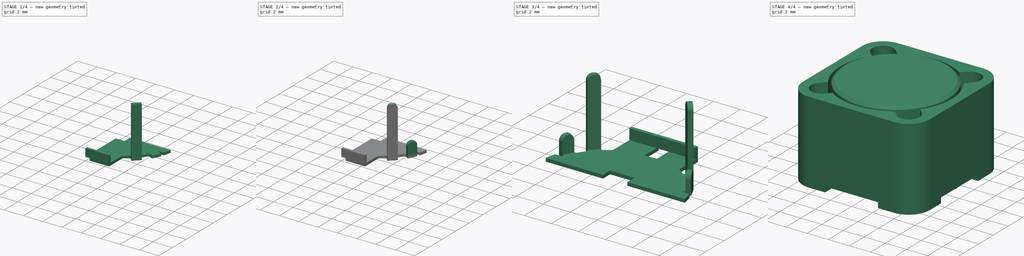
[diagram: build sequence overview — one tinted view per stage of 4, left to right]
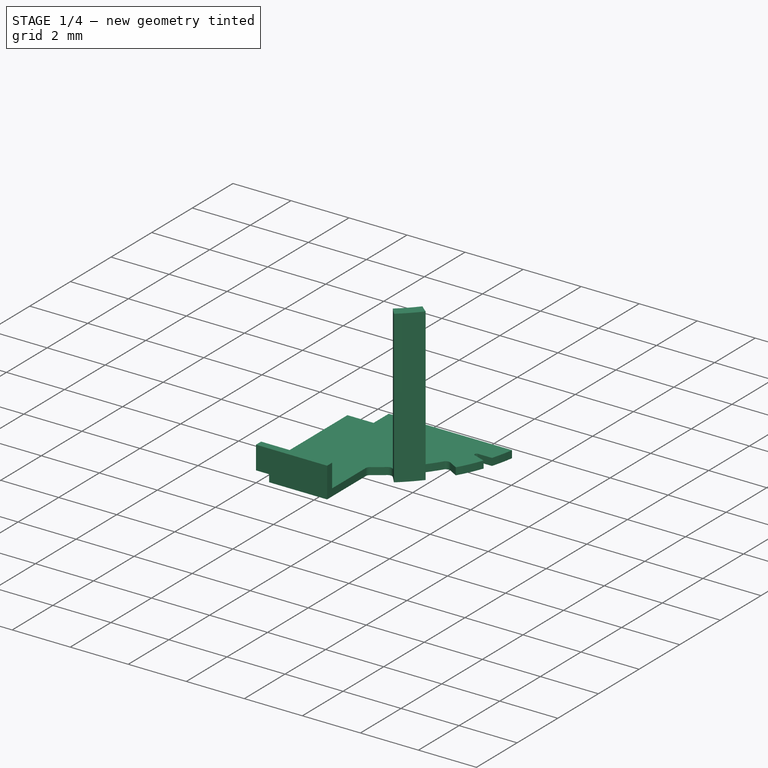
[diagram: stage 1 of 4 — iso view after this stage's code; geometry added in this stage tinted green]
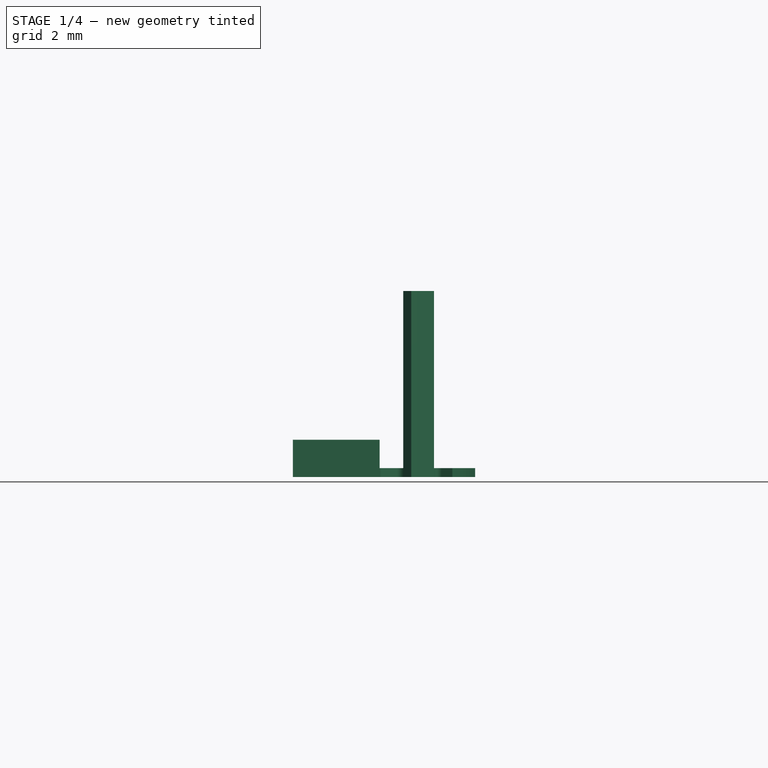
[diagram: stage 1 of 4 — front view after this stage's code; geometry added in this stage tinted green]
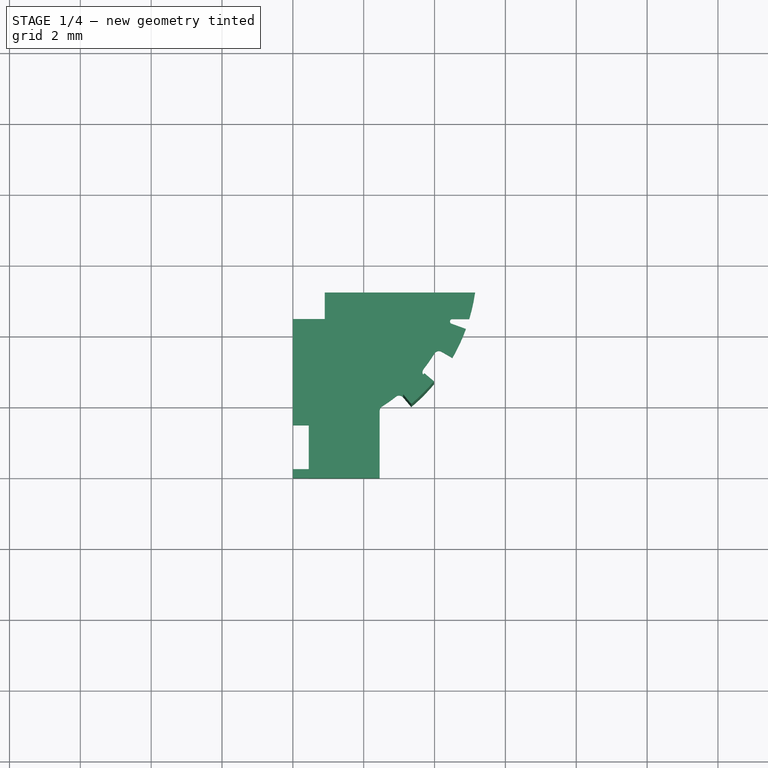
[diagram: stage 1 of 4 — top view after this stage's code; geometry added in this stage tinted green]
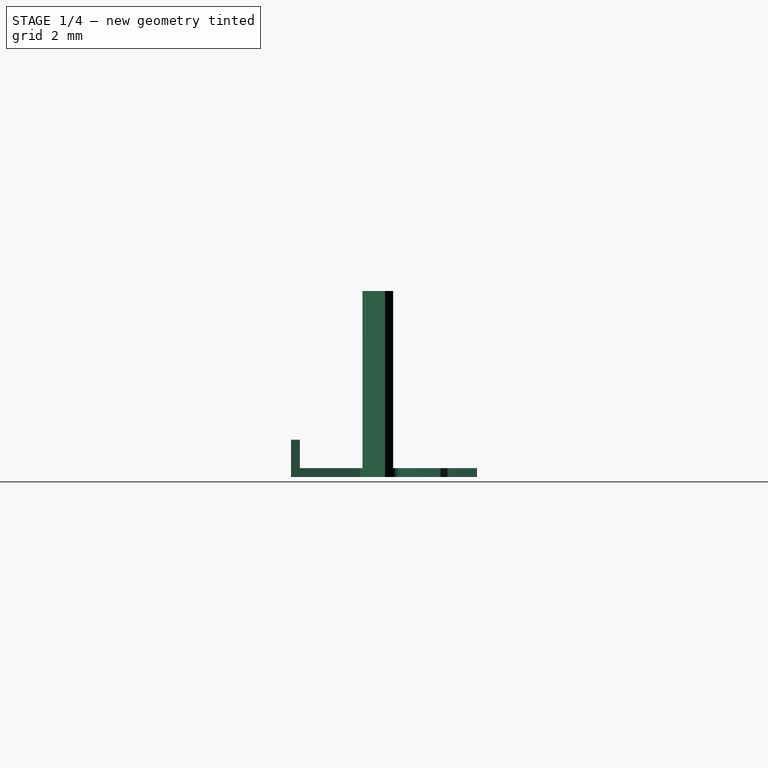
[diagram: stage 1 of 4 — right view after this stage's code; geometry added in this stage tinted green]
FCSTD DOCUMENT  (FreeCAD 0.18.1R)
Label: inductor_02
License: All rights reserved
LicenseURL: http://en.wikipedia.org/wiki/All_rights_reserved
objects: Sketcher::SketchObject×7, PartDesign::Pad×5, PartDesign::Body×3, PartDesign::Fillet×3, Part::Mirroring×3, PartDesign::Pocket×1, PartDesign::Revolution×1, PartDesign::Chamfer×1
note: 31 computed .brp shape members not serialized (recipe doc carries the construction recipe); baked Part::Feature solids carry a one-line shape summary decoded from their .brp

FEATURE [PartDesign::Body] Body001
  Group = -> [Sketch002,Revolution,Chamfer]
  Origin = -> Origin001
  Tip = -> Chamfer
FEATURE [Sketcher::SketchObject] Sketch003
  MapMode = 5
  Support = -> [XY_Plane002]
  sketch-geometry (25):
    g0: LineSegment StartX=0 StartY=-1.5 StartZ=0 EndX=0.9 EndY=-1.5 EndZ=0
    g1: LineSegment StartX=0.9 StartY=-1.5 StartZ=0 EndX=0.9 EndY=-0.75 EndZ=0
    g2: LineSegment StartX=0 StartY=-1.5 StartZ=0 EndX=0 EndY=-4.5 EndZ=0
    g3: LineSegment StartX=0 StartY=-4.5 StartZ=0 EndX=0.45 EndY=-4.5 EndZ=0
    g4: LineSegment StartX=0.45 StartY=-4.5 StartZ=0 EndX=0.45 EndY=-6 EndZ=0
    g5: LineSegment StartX=0.45 StartY=-6 StartZ=0 EndX=2.45 EndY=-6 EndZ=0
    g6: LineSegment StartX=2.45 StartY=-6 StartZ=0 EndX=2.45 EndY=-4.5 EndZ=0
    g7: ArcOfCircle CenterX=0 CenterY=0 CenterZ=0 NormalX=0 NormalY=0 NormalZ=1 AngleXU=0 Radius=5.2 StartAngle=5.41052 EndAngle=5.58505
    g8: LineSegment StartX=4.97896 StartY=-1.5 StartZ=0 EndX=4.50222 EndY=-1.5 EndZ=0
    g9: ArcOfCircle CenterX=4.50222 CenterY=-1.56718 CenterZ=0 NormalX=0 NormalY=0 NormalZ=1 AngleXU=0 Radius=0.0671807 StartAngle=1.5708 EndAngle=4.36332
    g10: LineSegment StartX=4.47924 StartY=-1.63031 StartZ=0 EndX=4.8864 EndY=-1.7785 EndZ=0
    g11: LineSegment StartX=4.50333 StartY=-2.6 StartZ=0 EndX=4.07032 EndY=-2.35 EndZ=0
    g12: LineSegment StartX=3.60041 StartY=-3.0211 StartZ=0 EndX=3.98343 EndY=-3.3425 EndZ=0
    g13: LineSegment StartX=3.3425 StartY=-3.98343 StartZ=0 EndX=3.0211 EndY=-3.60041 EndZ=0
    g14: LineSegment StartX=2.45 StartY=-4.01092 StartZ=0 EndX=2.45 EndY=-4.5 EndZ=0
    g15: ArcOfCircle CenterX=0 CenterY=0 CenterZ=0 NormalX=0 NormalY=0 NormalZ=1 AngleXU=0 Radius=4.7 StartAngle=5.26074 EndAngle=5.41052
    g16: LineSegment [constr] StartX=0 StartY=0 StartZ=0 EndX=4.07032 EndY=-2.35 EndZ=0
    g17: LineSegment [constr] StartX=0 StartY=0 StartZ=0 EndX=3.60041 EndY=-3.0211 EndZ=0
    g18: ArcOfCircle CenterX=0 CenterY=0 CenterZ=0 NormalX=0 NormalY=0 NormalZ=1 AngleXU=0 Radius=5.2 StartAngle=5.75959 EndAngle=5.93412
    g19: ArcOfCircle CenterX=0 CenterY=0 CenterZ=0 NormalX=0 NormalY=0 NormalZ=1 AngleXU=0 Radius=5.2 StartAngle=5.99057 EndAngle=6.13845
    g20: ArcOfCircle CenterX=0 CenterY=0 CenterZ=0 NormalX=0 NormalY=0 NormalZ=1 AngleXU=0 Radius=4.7 StartAngle=5.58505 EndAngle=5.75959
    g21: ArcOfCircle [constr] CenterX=0 CenterY=0 CenterZ=0 NormalX=0 NormalY=0 NormalZ=1 AngleXU=0 Radius=4.7 StartAngle=5.41052 EndAngle=6.28319
    g22: LineSegment [constr] StartX=0 StartY=0 StartZ=0 EndX=4.8864 EndY=-1.7785 EndZ=0
    g23: LineSegment StartX=5.14563 StartY=-0.75 StartZ=0 EndX=0.9 EndY=-0.75 EndZ=0
    g24: LineSegment [constr] StartX=0 StartY=0 StartZ=0 EndX=3.0211 EndY=-3.60041 EndZ=0
  constraints (75):
    c: Coincident(g0,g1)
    c: Vertical(g1)
    c: Horizontal(g0)
    c: Vertical(g2)
    c: Coincident(g2,g3)
    c: Horizontal(g3)
    c: Coincident(g3,g4)
    c: Vertical(g4)
    c: Coincident(g4,g5)
    c: Horizontal(g5)
    c: Coincident(g0,g2)
    c: Vertical(g6)
    c: Coincident(g5,g6)
    c: Coincident(g7,g-1)
    c: Horizontal(g8)
    c: Tangent(g8,g9) = -1.5708
    c: Tangent(g9,g10) = -1.5708
    c: Vertical(g14)
    c: Coincident(g14,g6)
    c: DistanceX(g0,g0) = 0.9
    c: PointOnObject(g0,g-2)
    c: DistanceY(g4,g4) = 1.5
    c: DistanceY(g4,g-1) = 6
    c: DistanceX(g3,g3) = 0.45
    c: DistanceX(g-1,g5) = 2.45
    c: Radius(g7) = 5.2
    c: Radius(g15) = 4.7
    c: Coincident(g15,g-1)
    c: DistanceY(g8,g-1) = 1.5
    c: PointOnObject(g11,g15)
    c: Coincident(g15,g14)
    c: PointOnObject(g8,g7)
    c: PointOnObject(g10,g7)
    c: Coincident(g16,g-1)
    c: Coincident(g17,g-1)
    c: Angle(g16) = -0.523599
    c: Coincident(g16,g11)
    c: Parallel(g11,g16)
    c: Coincident(g7,g13)
    c: Equal(g7,g18)
    c: Coincident(g7,g12)
    c: Coincident(g18,g11)
    c: Coincident(g7,g18)
    c: Equal(g18,g19)
    c: PointOnObject(g18,g10)
    c: PointOnObject(g19,g8)
    c: Coincident(g18,g19)
    c: Equal(g15,g20)
    c: Coincident(g15,g13)
    c: Coincident(g20,g12)
    c: Coincident(g15,g20)
    c: PointOnObject(g20,g11)
    c: Coincident(g21,g-1)
    c: Coincident(g21,g13)
    c: Angle(g12,g-1) = 0.698132
    c: Coincident(g12,g17)
    c: Equal(g4,g6)
    c: Coincident(g22,g-1)
    c: Angle(g22) = -0.349066
    c: PointOnObject(g22,g18)
    c: PointOnObject(g10,g22)
    c: Horizontal(g23)
    c: Coincident(g19,g23)
    c: Coincident(g1,g23)
    c: DistanceY(g0,g-1) = 1.5
    c: DistanceY(g1,g-1) = 0.75
    c: Parallel(g10,g22)
    c: Tangent(g9,g21)
    c: Angle(g17,g-1) = 0.698132
    c: Coincident(g24,g-1)
    c: PointOnObject(g24,g15)
    c: Angle(g24,g-1) = 0.872665
    c: PointOnObject(g24,g13)
    c: Angle(g13,g-1) = 0.872665
    c: Angle(g21) = 0.872665
FEATURE [PartDesign::Pad] Pad001
  Length = 0.25
  Length2 = 100
  Profile = -> Sketch003
  Type = 0
FEATURE [PartDesign::Fillet] Fillet
  Base = -> Pad001 [Edge1,Edge56,Edge47,Edge44]
  BaseFeature = -> Pad001
  Radius = 0.15
FEATURE [Sketcher::SketchObject] Sketch004
  ExternalGeometry = -> [Fillet]
  MapMode = 5
  Placement = pos=(0,0,0.25) rot=(0,0,1;0rad)
  Support = -> [Fillet]
  sketch-geometry (4):
    g0: LineSegment StartX=0 StartY=-5.75 StartZ=0 EndX=2.45 EndY=-5.75 EndZ=0
    g1: LineSegment StartX=2.45 StartY=-6 StartZ=0 EndX=0 EndY=-6 EndZ=0
    g2: LineSegment StartX=0 StartY=-6 StartZ=0 EndX=0 EndY=-5.75 EndZ=0
    g3: LineSegment StartX=2.45 StartY=-5.75 StartZ=0 EndX=2.45 EndY=-6 EndZ=0
  constraints (11):
    c: Coincident(g1,g2)
    c: Coincident(g2,g0)
    c: Horizontal(g0)
    c: Horizontal(g1)
    c: Vertical(g2)
    c: DistanceY(g2,g2) = 0.25
    c: DistanceX(g0,g-1) = 0
    c: Coincident(g3,g0)
    c: Coincident(g3,g1)
    c: Vertical(g3)
    c: Coincident(g1,g-4)
FEATURE [PartDesign::Pad] Pad002
  BaseFeature = -> Fillet
  Length = 0.8
  Length2 = 100
  Profile = -> Sketch004
  Type = 0
FEATURE [Sketcher::SketchObject] Sketch005
  ExternalGeometry = -> [Pad002]
  MapMode = 5
  Placement = pos=(0,0,0.25) rot=(0,0,1;0rad)
  Support = -> [Pad002]
  sketch-geometry (4):
    g0: ArcOfCircle CenterX=0 CenterY=0 CenterZ=0 NormalX=0 NormalY=0 NormalZ=1 AngleXU=0 Radius=4.84768 StartAngle=5.41052 EndAngle=5.58505
    g1: ArcOfCircle CenterX=0 CenterY=0 CenterZ=0 NormalX=0 NormalY=0 NormalZ=1 AngleXU=0 Radius=5.2 StartAngle=5.41052 EndAngle=5.58505
    g2: LineSegment StartX=3.71354 StartY=-3.11603 StartZ=0 EndX=3.98343 EndY=-3.3425 EndZ=0
    g3: LineSegment StartX=3.11603 StartY=-3.71354 StartZ=0 EndX=3.3425 EndY=-3.98343 EndZ=0
  constraints (10):
    c: Coincident(g0,g-1)
    c: Coincident(g1,g-1)
    c: Coincident(g1,g2)
    c: Coincident(g1,g-4)
    c: Coincident(g2,g0)
    c: Coincident(g0,g-3)
    c: Parallel(g-4,g2)
    c: Coincident(g3,g0)
    c: Coincident(g3,g1)
    c: Parallel(g3,g-3)
FEATURE [PartDesign::Pad] Pad003
  BaseFeature = -> Pad002
  Length = 5
  Length2 = 100
  Profile = -> Sketch005
  Type = 0
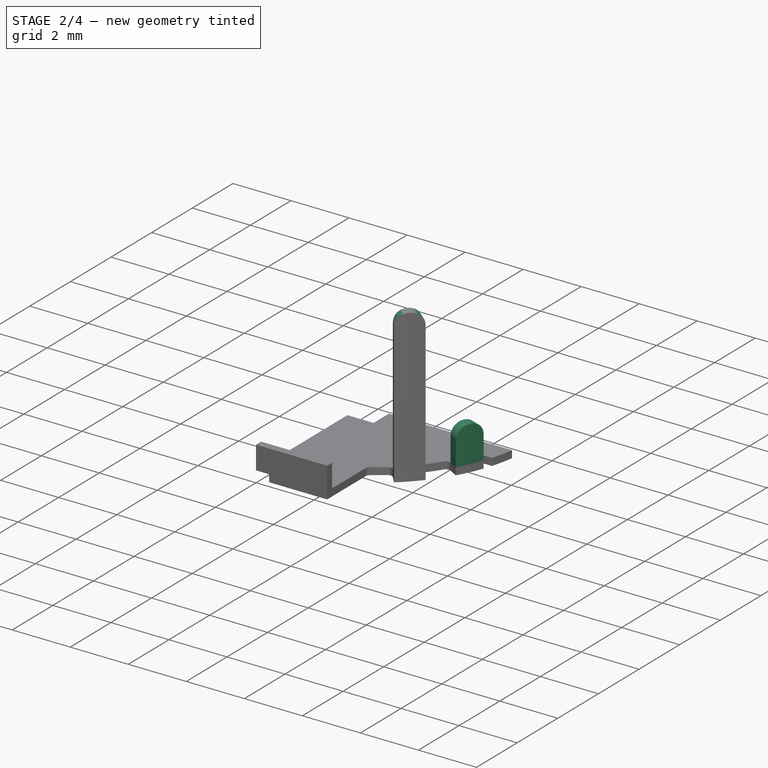
[diagram: stage 2 of 4 — iso view after this stage's code; geometry added in this stage tinted green]
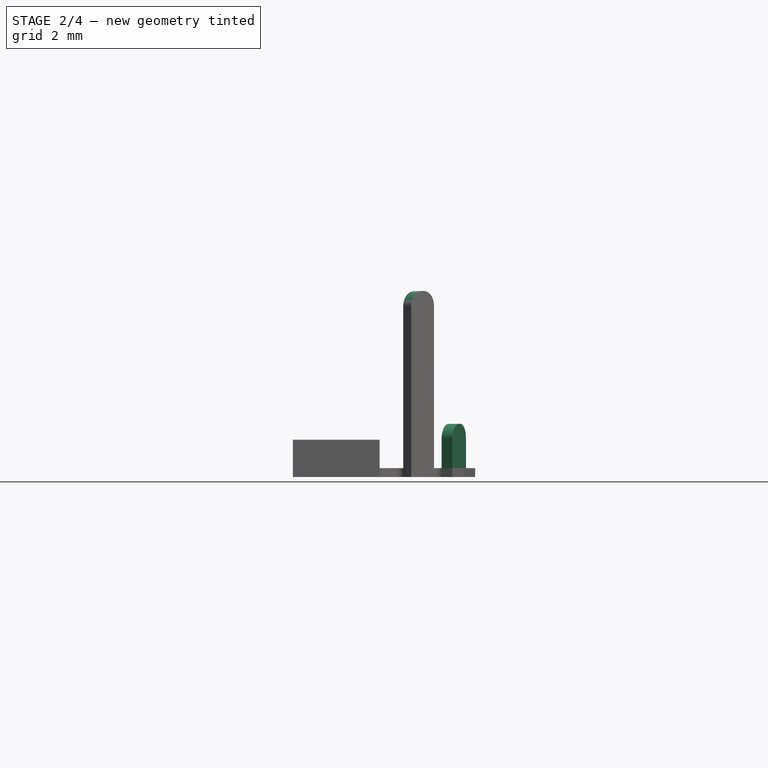
[diagram: stage 2 of 4 — front view after this stage's code; geometry added in this stage tinted green]
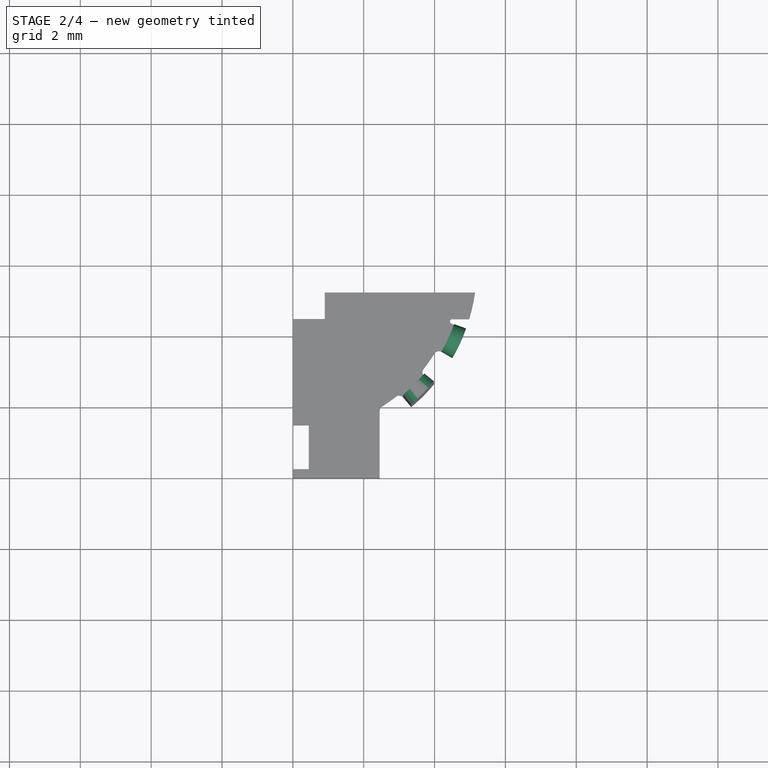
[diagram: stage 2 of 4 — top view after this stage's code; geometry added in this stage tinted green]
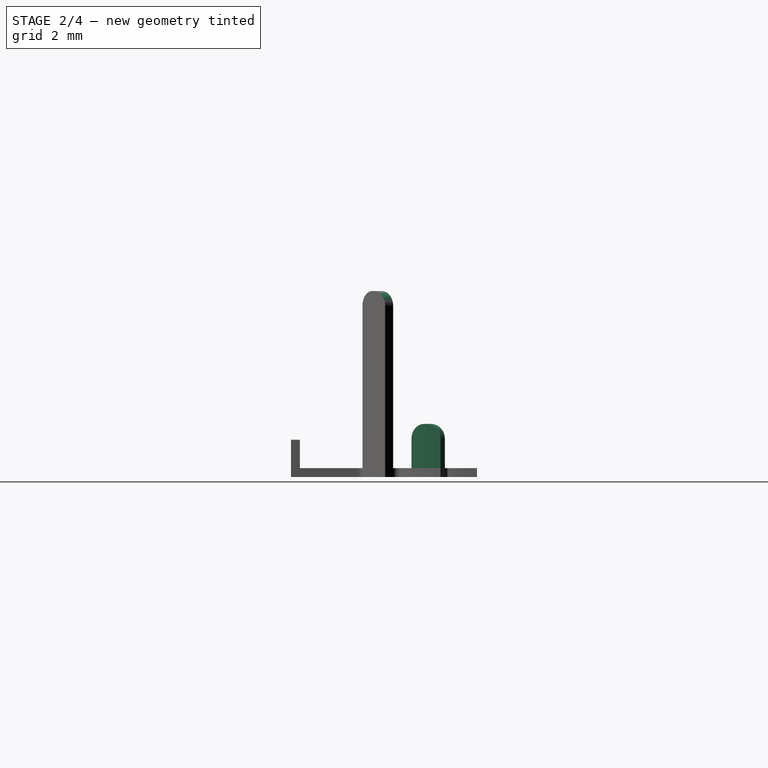
[diagram: stage 2 of 4 — right view after this stage's code; geometry added in this stage tinted green]
FEATURE [Sketcher::SketchObject] Sketch006
  ExternalGeometry = -> [Pad003]
  MapMode = 5
  Placement = pos=(0,0,0.25) rot=(0,0,1;0rad)
  Support = -> [Pad003]
  sketch-geometry (4):
    g0: ArcOfCircle CenterX=0 CenterY=0 CenterZ=0 NormalX=0 NormalY=0 NormalZ=1 AngleXU=0 Radius=4.84768 StartAngle=5.75959 EndAngle=5.93412
    g1: ArcOfCircle CenterX=0 CenterY=0 CenterZ=0 NormalX=0 NormalY=0 NormalZ=1 AngleXU=0 Radius=5.2 StartAngle=5.75959 EndAngle=5.93412
    g2: LineSegment StartX=4.19821 StartY=-2.42384 StartZ=0 EndX=4.50333 EndY=-2.6 EndZ=0
    g3: LineSegment StartX=4.55533 StartY=-1.658 StartZ=0 EndX=4.8864 EndY=-1.7785 EndZ=0
  constraints (10):
    c: Coincident(g0,g-1)
    c: Coincident(g1,g-1)
    c: Coincident(g2,g0)
    c: Coincident(g1,g2)
    c: Coincident(g3,g1)
    c: Coincident(g0,g3)
    c: Coincident(g0,g-4)
    c: Coincident(g-4,g1)
    c: Parallel(g3,g-3)
    c: PointOnObject(g0,g-3)
FEATURE [PartDesign::Pad] Pad004
  BaseFeature = -> Pad003
  Length = 1.25
  Length2 = 100
  Profile = -> Sketch006
  Type = 0
FEATURE [PartDesign::Fillet] Fillet001
  Base = -> Pad004 [Edge96,Edge99]
  BaseFeature = -> Pad004
  Radius = 0.42
FEATURE [PartDesign::Fillet] Fillet002
  Base = -> Fillet001 [Edge99,Edge101]
  BaseFeature = -> Fillet001
  Radius = 0.42
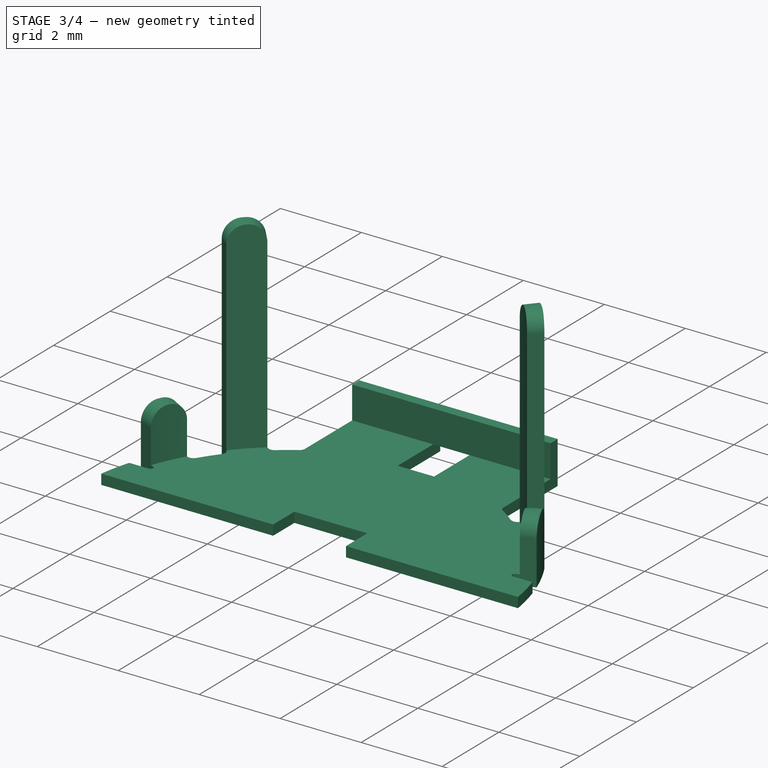
[diagram: stage 3 of 4 — iso view after this stage's code; geometry added in this stage tinted green]
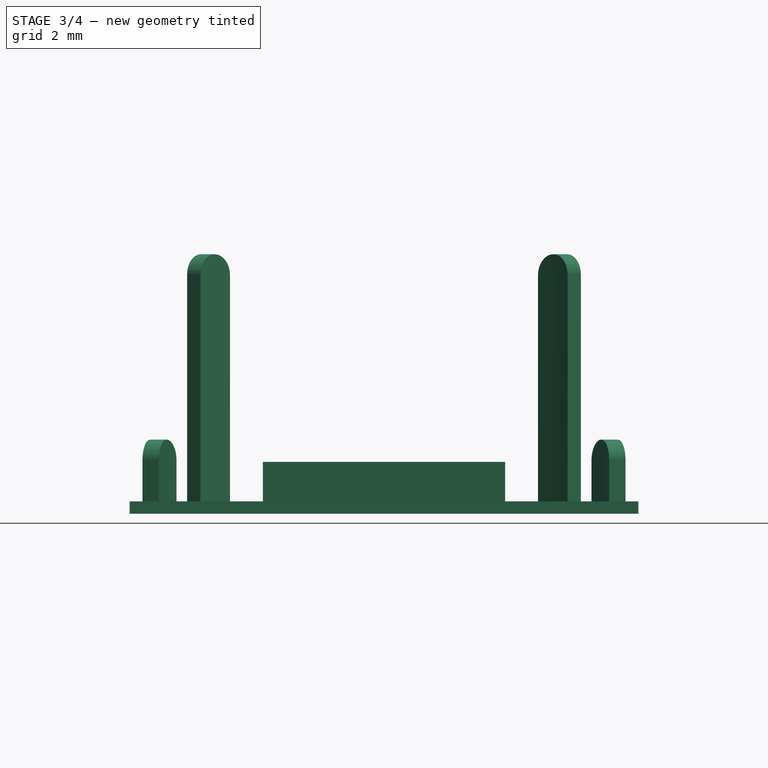
[diagram: stage 3 of 4 — front view after this stage's code; geometry added in this stage tinted green]
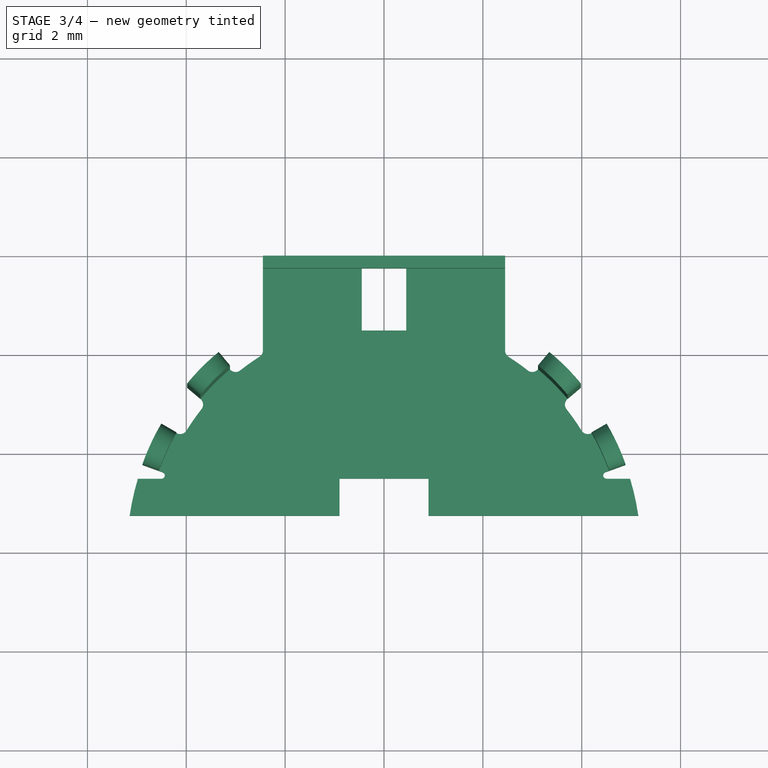
[diagram: stage 3 of 4 — top view after this stage's code; geometry added in this stage tinted green]
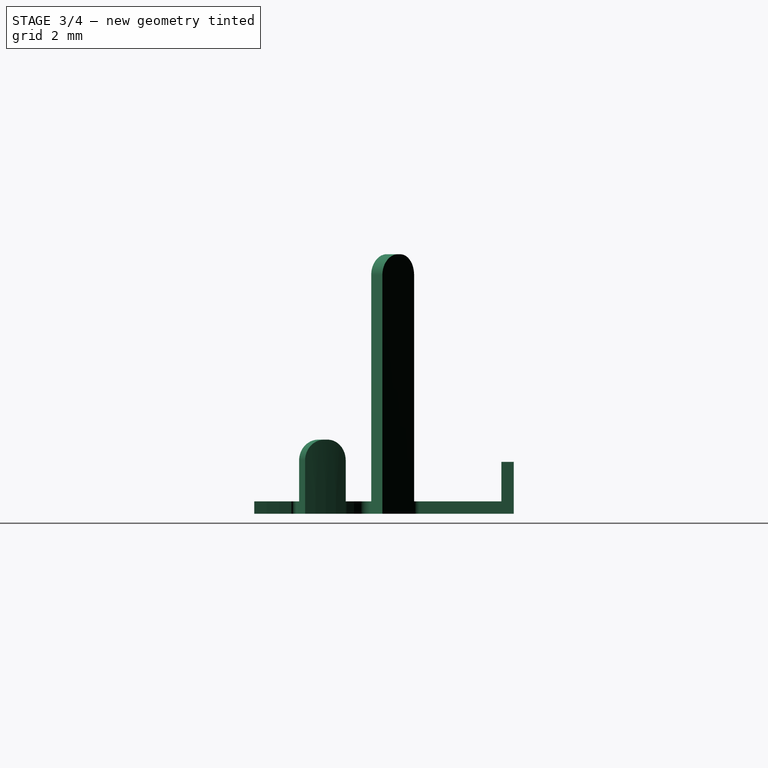
[diagram: stage 3 of 4 — right view after this stage's code; geometry added in this stage tinted green]
FEATURE [PartDesign::Body] Body002
  Group = -> [Sketch003,Pad001,Fillet,Sketch004,Pad002,Sketch005,Pad003,Sketch006,Pad004,Fillet001,Fillet002]
  Origin = -> Origin002
  Placement = pos=(0,0,-0.25) rot=(0,0,1;0rad)
  Tip = -> Fillet002
FEATURE [Part::Mirroring] mirror  label="Mirror of Body002"
  Base = (10,0,0)
  Normal = (0,1,0)
  Source = -> Body002
FEATURE [Part::Mirroring] mirror001  label="Mirror of Body003"
  Base = (0,-10,0)
  Normal = (1,0,0)
  Source = -> Body002
FEATURE [Part::Mirroring] mirror002  label="Mirror of Mirror of Body003"
  Base = (-10,0,0)
  Normal = (0,-1,0)
  Source = -> mirror001
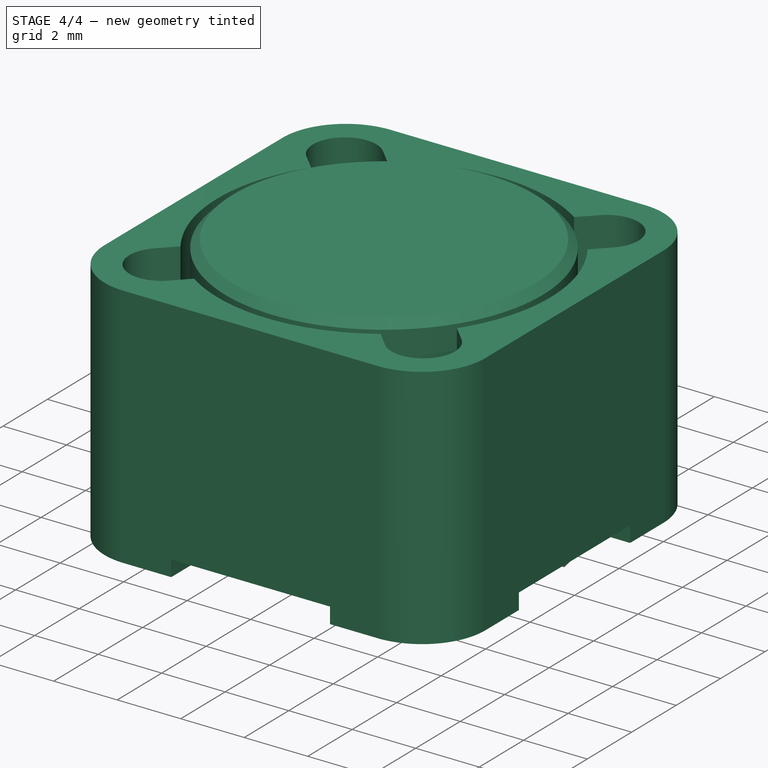
[diagram: stage 4 of 4 — iso view after this stage's code; geometry added in this stage tinted green]
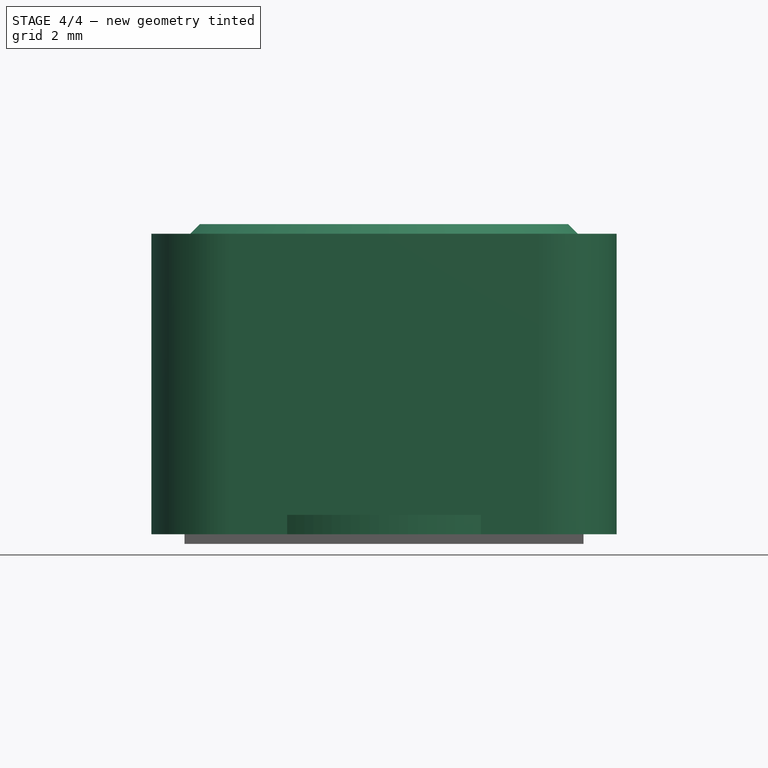
[diagram: stage 4 of 4 — front view after this stage's code; geometry added in this stage tinted green]
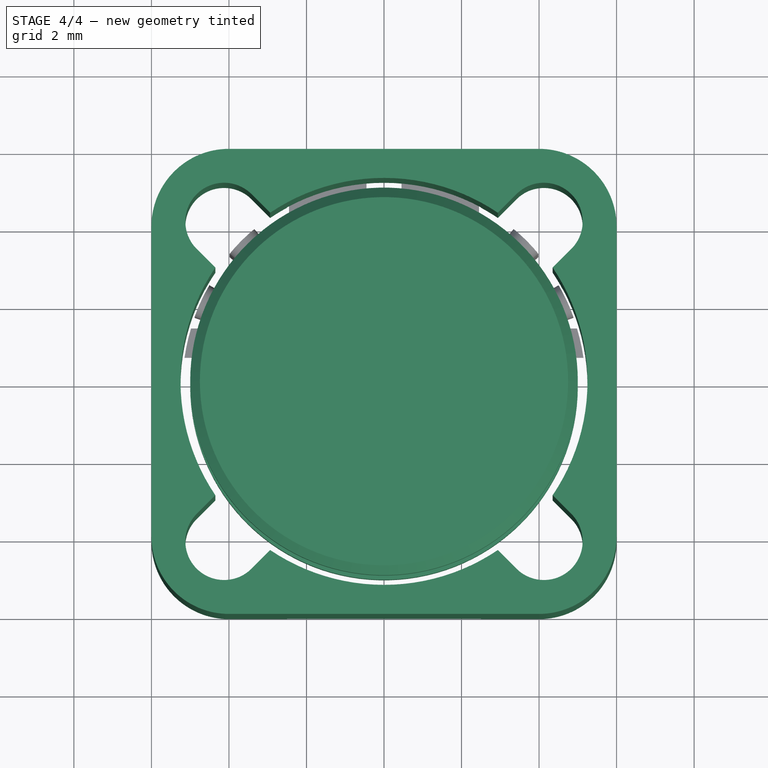
[diagram: stage 4 of 4 — top view after this stage's code; geometry added in this stage tinted green]
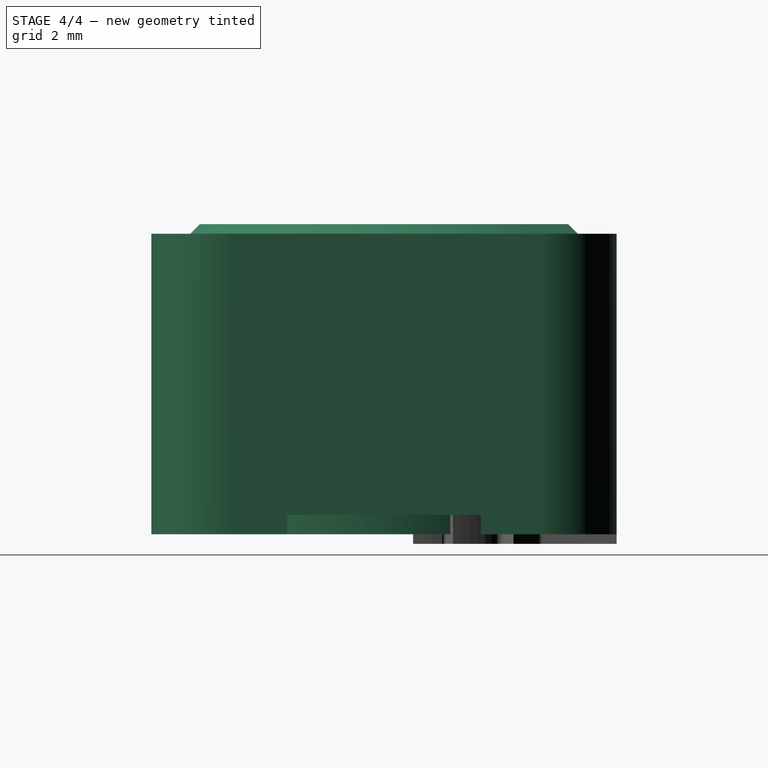
[diagram: stage 4 of 4 — right view after this stage's code; geometry added in this stage tinted green]
FEATURE [Sketcher::SketchObject] Sketch
  MapMode = 5
  Support = -> [XY_Plane]
  sketch-geometry (36):
    g0: LineSegment StartX=-4 StartY=6 StartZ=0 EndX=4 EndY=6 EndZ=0
    g1: ArcOfCircle CenterX=4 CenterY=4 CenterZ=0 NormalX=0 NormalY=0 NormalZ=1 AngleXU=0 Radius=2 StartAngle=6.28318 EndAngle=7.85398
    g2: LineSegment StartX=6 StartY=4 StartZ=0 EndX=6 EndY=-4 EndZ=0
    g3: ArcOfCircle CenterX=4 CenterY=-4 CenterZ=0 NormalX=0 NormalY=0 NormalZ=1 AngleXU=0 Radius=2 StartAngle=4.71239 EndAngle=6.28319
    g4: LineSegment StartX=4 StartY=-6 StartZ=0 EndX=-4 EndY=-6 EndZ=0
    g5: ArcOfCircle CenterX=-4 CenterY=-4 CenterZ=0 NormalX=0 NormalY=0 NormalZ=1 AngleXU=0 Radius=2 StartAngle=3.14159 EndAngle=4.71239
    g6: LineSegment StartX=-6 StartY=-4 StartZ=0 EndX=-6 EndY=4 EndZ=0
    g7: ArcOfCircle CenterX=-4 CenterY=4 CenterZ=0 NormalX=0 NormalY=0 NormalZ=1 AngleXU=0 Radius=2 StartAngle=1.5708 EndAngle=3.14159
    g8: LineSegment [constr] StartX=-4.125 StartY=4.125 StartZ=0 EndX=4.125 EndY=4.125 EndZ=0
    g9: LineSegment [constr] StartX=4.125 StartY=4.125 StartZ=0 EndX=4.125 EndY=-4.125 EndZ=0
    g10: LineSegment [constr] StartX=4.125 StartY=-4.125 StartZ=0 EndX=-4.125 EndY=-4.125 EndZ=0
    g11: LineSegment [constr] StartX=-4.125 StartY=-4.125 StartZ=0 EndX=-4.125 EndY=4.125 EndZ=0
    g12: LineSegment [constr] StartX=-3.41789 StartY=4.83211 StartZ=0 EndX=4.83211 EndY=-3.41789 EndZ=0
    g13: LineSegment [constr] StartX=4.83211 StartY=-3.41789 StartZ=0 EndX=3.41789 EndY=-4.83211 EndZ=0
    g14: LineSegment [constr] StartX=3.41789 StartY=-4.83211 StartZ=0 EndX=-4.83211 EndY=3.41789 EndZ=0
    g15: LineSegment [constr] StartX=-4.83211 StartY=3.41789 StartZ=0 EndX=-3.41789 EndY=4.83211 EndZ=0
    g16: LineSegment [constr] StartX=3.41789 StartY=4.83211 StartZ=0 EndX=4.83211 EndY=3.41789 EndZ=0
    g17: LineSegment [constr] StartX=4.83211 StartY=3.41789 StartZ=0 EndX=-3.41789 EndY=-4.83211 EndZ=0
    g18: LineSegment [constr] StartX=-3.41789 StartY=-4.83211 StartZ=0 EndX=-4.83211 EndY=-3.41789 EndZ=0
    g19: LineSegment [constr] StartX=-4.83211 StartY=-3.41789 StartZ=0 EndX=3.41789 EndY=4.83211 EndZ=0
    g20: ArcOfCircle CenterX=0 CenterY=0 CenterZ=0 NormalX=0 NormalY=0 NormalZ=1 AngleXU=0 Radius=5.25 StartAngle=2.54784 EndAngle=3.73534
    g21: ArcOfCircle CenterX=0 CenterY=0 CenterZ=0 NormalX=0 NormalY=0 NormalZ=1 AngleXU=0 Radius=5.25 StartAngle=0.977045 EndAngle=2.16455
    g22: ArcOfCircle CenterX=0 CenterY=0 CenterZ=0 NormalX=0 NormalY=0 NormalZ=1 AngleXU=0 Radius=5.25 StartAngle=5.68943 EndAngle=6.87694
    g23: ArcOfCircle CenterX=0 CenterY=0 CenterZ=0 NormalX=0 NormalY=0 NormalZ=1 AngleXU=0 Radius=5.25 StartAngle=4.11864 EndAngle=5.30614
    g24: LineSegment StartX=-4.35145 StartY=2.93724 StartZ=0 EndX=-4.83211 EndY=3.41789 EndZ=0
    g25: ArcOfCircle CenterX=-4.125 CenterY=4.125 CenterZ=0 NormalX=0 NormalY=0 NormalZ=1 AngleXU=0 Radius=1 StartAngle=0.785398 EndAngle=3.92699
    g26: LineSegment StartX=-3.41789 StartY=4.83211 StartZ=0 EndX=-2.93724 EndY=4.35145 EndZ=0
    g27: LineSegment StartX=2.93724 StartY=4.35145 StartZ=0 EndX=3.41789 EndY=4.83211 EndZ=0
    g28: ArcOfCircle CenterX=4.125 CenterY=4.125 CenterZ=0 NormalX=0 NormalY=0 NormalZ=1 AngleXU=0 Radius=1 StartAngle=5.49779 EndAngle=8.63938
    g29: LineSegment StartX=4.83211 StartY=3.41789 StartZ=0 EndX=4.35145 EndY=2.93724 EndZ=0
    g30: LineSegment StartX=4.35145 StartY=-2.93724 StartZ=0 EndX=4.83211 EndY=-3.41789 EndZ=0
    g31: ArcOfCircle CenterX=4.125 CenterY=-4.125 CenterZ=0 NormalX=0 NormalY=0 NormalZ=1 AngleXU=0 Radius=1 StartAngle=3.92699 EndAngle=7.06858
    g32: LineSegment StartX=3.41789 StartY=-4.83211 StartZ=0 EndX=2.93724 EndY=-4.35145 EndZ=0
    g33: LineSegment StartX=-2.93724 StartY=-4.35145 StartZ=0 EndX=-3.41789 EndY=-4.83211 EndZ=0
    g34: ArcOfCircle CenterX=-4.125 CenterY=-4.125 CenterZ=0 NormalX=0 NormalY=0 NormalZ=1 AngleXU=0 Radius=1 StartAngle=2.35619 EndAngle=5.49779
    g35: LineSegment StartX=-4.83211 StartY=-3.41789 StartZ=0 EndX=-4.35145 EndY=-2.93724 EndZ=0
  constraints (96):
    c: Tangent(g0,g1) = 1.5708
    c: Coincident(g1,g2)
    c: Vertical(g2)
    c: Tangent(g2,g3) = 1.5708
    c: Coincident(g3,g4)
    c: Horizontal(g4)
    c: Tangent(g4,g5) = 1.5708
    c: Coincident(g5,g6)
    c: Vertical(g6)
    c: Tangent(g6,g7) = 1.5708
    c: Coincident(g7,g0)
    c: Equal(g0,g4)
    c: Equal(g4,g6)
    c: Equal(g6,g2)
    c: Equal(g5,g3)
    c: Equal(g3,g1)
    c: Equal(g1,g7)
    c: Symmetric(g0,g0,g-2)
    c: Symmetric(g0,g4,g-1)
    c: DistanceX(g6,g1) = 12
    c: Angle(g7) = 1.5708
    c: Radius(g7) = 2
    c: Coincident(g8,g9)
    c: Coincident(g9,g10)
    c: Coincident(g10,g11)
    c: Coincident(g11,g8)
    c: Horizontal(g10)
    c: Vertical(g9)
    c: Equal(g8,g11)
    c: Symmetric(g8,g8,g-2)
    c: Symmetric(g10,g8,g-1)
    c: DistanceX(g8,g8) = 8.25
    c: Coincident(g12,g13)
    c: Coincident(g13,g14)
    c: Coincident(g14,g15)
    c: Coincident(g15,g12)
    c: Angle(g13,g14) = 1.5708
    c: Angle(g15,g12) = 1.5708
    c: Angle(g12) = -0.785398
    c: Symmetric(g12,g14,g8)
    c: Symmetric(g12,g13,g9)
    c: Coincident(g16,g17)
    c: Coincident(g17,g18)
    c: Coincident(g18,g19)
    c: Coincident(g19,g16)
    c: Angle(g17,g18) = 1.5708
    c: Angle(g16,g17) = 1.5708
    c: Angle(g19) = 0.785398
    c: Symmetric(g16,g16,g8)
    c: Symmetric(g18,g17,g10)
    c: Coincident(g20,g-1)
    c: Radius(g20) = 5.25
    c: PointOnObject(g20,g14)
    c: PointOnObject(g21,g12)
    c: Equal(g20,g21)
    c: PointOnObject(g22,g17)
    c: PointOnObject(g21,g19)
    c: Coincident(g20,g21)
    c: Equal(g20,g22)
    c: PointOnObject(g23,g14)
    c: PointOnObject(g22,g12)
    c: Coincident(g20,g22)
    c: Equal(g20,g23)
    c: PointOnObject(g20,g19)
    c: PointOnObject(g23,g17)
    c: Coincident(g20,g23)
    c: Tangent(g24,g25) = 1.5708
    c: Coincident(g25,g26)
    c: Coincident(g26,g21)
    c: Coincident(g24,g20)
    c: Angle(g25) = 3.14159
    c: Coincident(g25,g8)
    c: Tangent(g27,g28) = 1.5708
    c: Coincident(g28,g29)
    c: Coincident(g29,g22)
    c: Coincident(g27,g21)
    c: Angle(g28) = 3.14159
    c: Coincident(g28,g8)
    c: Tangent(g30,g31) = 1.5708
    c: Coincident(g31,g32)
    c: Coincident(g32,g23)
    c: Coincident(g30,g22)
    c: Angle(g31) = 3.14159
    c: Coincident(g31,g9)
    c: Tangent(g33,g34) = 1.5708
    c: Coincident(g34,g35)
    c: Coincident(g23,g33)
    c: Coincident(g35,g20)
    c: Angle(g34) = 3.14159
    c: Coincident(g10,g34)
    c: Equal(g28,g25)
    c: Equal(g28,g34)
    c: Equal(g28,g31)
    c: Angle(g27,g26) = 1.5708
    c: Equal(g16,g15)
    c: Distance(g15) = 2
FEATURE [PartDesign::Pad] Pad
  Length = 7.75
  Length2 = 100
  Profile = -> Sketch
  Refine = true
  Type = 0
FEATURE [Sketcher::SketchObject] Sketch001
  MapMode = 5
  Placement = pos=(0,0,0) rot=(1,0,0;3.14159rad)
  Support = -> [Pad]
  sketch-geometry (12):
    g0: LineSegment StartX=-6.5 StartY=2.5 StartZ=0 EndX=-2.5 EndY=2.5 EndZ=0
    g1: LineSegment StartX=-2.5 StartY=2.5 StartZ=0 EndX=-2.5 EndY=6.5 EndZ=0
    g2: LineSegment StartX=-2.5 StartY=6.5 StartZ=0 EndX=2.5 EndY=6.5 EndZ=0
    g3: LineSegment StartX=2.5 StartY=6.5 StartZ=0 EndX=2.5 EndY=2.5 EndZ=0
    g4: LineSegment StartX=2.5 StartY=2.5 StartZ=0 EndX=6.5 EndY=2.5 EndZ=0
    g5: LineSegment StartX=6.5 StartY=2.5 StartZ=0 EndX=6.5 EndY=-2.5 EndZ=0
    g6: LineSegment StartX=6.5 StartY=-2.5 StartZ=0 EndX=2.5 EndY=-2.5 EndZ=0
    g7: LineSegment StartX=2.5 StartY=-2.5 StartZ=0 EndX=2.5 EndY=-6.5 EndZ=0
    g8: LineSegment StartX=2.5 StartY=-6.5 StartZ=0 EndX=-2.5 EndY=-6.5 EndZ=0
    g9: LineSegment StartX=-2.5 StartY=-6.5 StartZ=0 EndX=-2.5 EndY=-2.5 EndZ=0
    g10: LineSegment StartX=-2.5 StartY=-2.5 StartZ=0 EndX=-6.5 EndY=-2.5 EndZ=0
    g11: LineSegment StartX=-6.5 StartY=-2.5 StartZ=0 EndX=-6.5 EndY=2.5 EndZ=0
  constraints (36):
    c: Horizontal(g0)
    c: Coincident(g0,g1)
    c: Vertical(g1)
    c: Coincident(g1,g2)
    c: Horizontal(g2)
    c: Coincident(g2,g3)
    c: Vertical(g3)
    c: Coincident(g3,g4)
    c: Coincident(g4,g5)
    c: Vertical(g5)
    c: Coincident(g5,g6)
    c: Horizontal(g6)
    c: Coincident(g6,g7)
    c: Coincident(g7,g8)
    c: Horizontal(g8)
    c: Coincident(g8,g9)
    c: Coincident(g9,g10)
    c: Coincident(g10,g11)
    c: Coincident(g0,g11)
    c: Vertical(g11)
    c: Vertical(g9)
    c: Vertical(g7)
    c: Equal(g11,g2)
    c: Equal(g2,g5)
    c: Equal(g5,g8)
    c: Equal(g0,g10)
    c: Equal(g10,g9)
    c: Equal(g9,g7)
    c: Equal(g7,g6)
    c: Equal(g6,g4)
    c: Equal(g4,g3)
    c: Equal(g3,g1)
    c: Symmetric(g1,g8,g-1)
    c: Symmetric(g0,g4,g-2)
    c: DistanceY(g11,g11) = 5
    c: DistanceX(g10,g10) = 4
FEATURE [PartDesign::Pocket] Pocket
  BaseFeature = -> Pad
  Length = 0.5
  Length2 = 100
  Profile = -> Sketch001
  Refine = true
  Type = 0
FEATURE [PartDesign::Body] Body
  Group = -> [Sketch,Pad,Sketch001,Pocket]
  Origin = -> Origin
  Placement = pos=(0,0,0.25) rot=(0,0,1;0rad)
  Tip = -> Pocket
FEATURE [Sketcher::SketchObject] Sketch002
  MapMode = 5
  Placement = pos=(0,0,0) rot=(1,0,0;1.5708rad)
  Support = -> [XZ_Plane001]
  sketch-geometry (8):
    g0: LineSegment StartX=0 StartY=0 StartZ=0 EndX=-5 EndY=0 EndZ=0
    g1: LineSegment StartX=-5 StartY=0 StartZ=0 EndX=-5 EndY=1 EndZ=0
    g2: LineSegment StartX=-5 StartY=1 StartZ=0 EndX=-2.9 EndY=1 EndZ=0
    g3: LineSegment StartX=-2.9 StartY=1 StartZ=0 EndX=-2.9 EndY=7 EndZ=0
    g4: LineSegment StartX=-2.9 StartY=7 StartZ=0 EndX=-5 EndY=7 EndZ=0
    g5: LineSegment StartX=-5 StartY=7 StartZ=0 EndX=-5 EndY=8 EndZ=0
    g6: LineSegment StartX=-5 StartY=8 StartZ=0 EndX=0 EndY=8 EndZ=0
    g7: LineSegment StartX=0 StartY=8 StartZ=0 EndX=0 EndY=0 EndZ=0
  constraints (23):
    c: Horizontal(g0)
    c: Coincident(g0,g1)
    c: Vertical(g1)
    c: Coincident(g1,g2)
    c: Horizontal(g2)
    c: Coincident(g2,g3)
    c: Vertical(g3)
    c: Coincident(g3,g4)
    c: Horizontal(g4)
    c: Coincident(g4,g5)
    c: Vertical(g5)
    c: Coincident(g5,g6)
    c: Horizontal(g6)
    c: Coincident(g6,g7)
    c: Coincident(g7,g0)
    c: Vertical(g7)
    c: Coincident(g0,g-1)
    c: DistanceX(g0,g0) = 5
    c: DistanceY(g1,g1) = 1
    c: DistanceX(g4,g-1) = 5
    c: DistanceY(g4,g6) = 1
    c: DistanceX(g2,g-1) = 2.9
    c: DistanceY(g7,g7) = 8
FEATURE [PartDesign::Revolution] Revolution
  Angle = 360
  Axis = (0,0,1)
  Base = (0,0,0)
  Placement = pos=(0,0,0) rot=(1,0,0;1.5708rad)
  Profile = -> Sketch002
  ReferenceAxis = -> Sketch002 [V_Axis]
  Refine = true
FEATURE [PartDesign::Chamfer] Chamfer
  Base = -> Revolution [Edge8]
  BaseFeature = -> Revolution
  Placement = pos=(0,0,0) rot=(1,0,0;1.5708rad)
  Size = 0.25
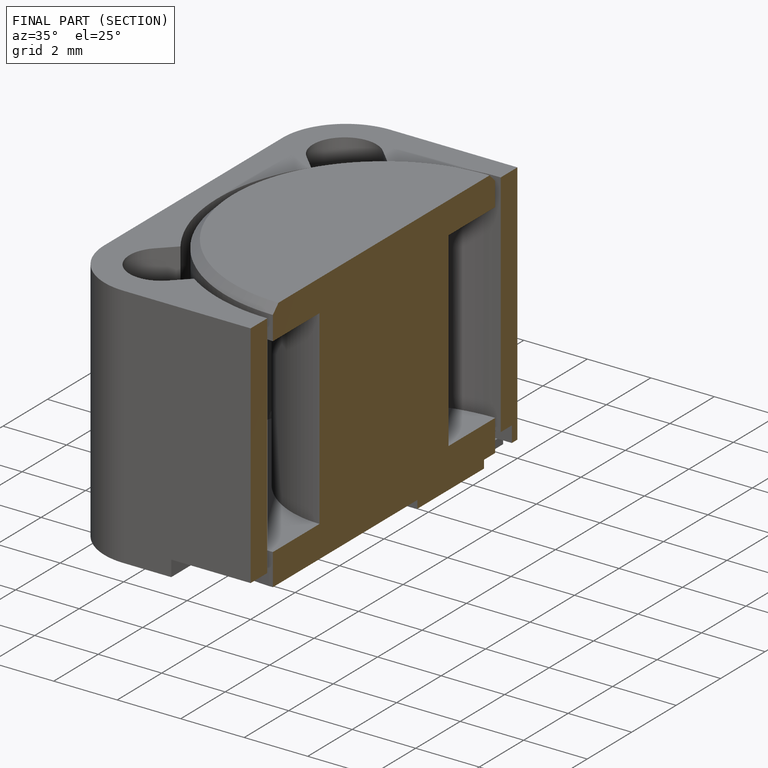
[diagram: finished part — half-section view (interior)]
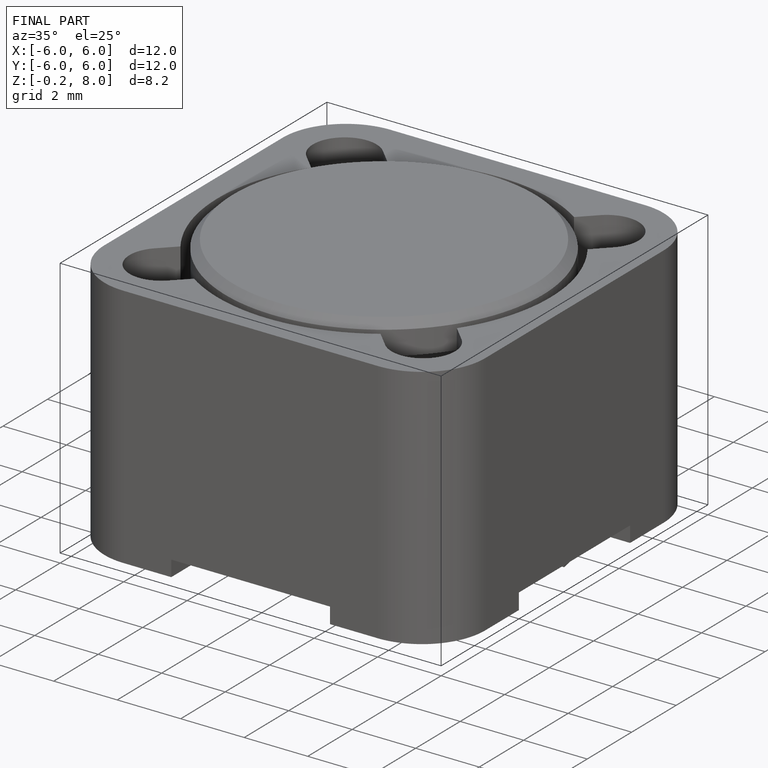
[diagram: finished part — iso view with bounding-box wireframe]
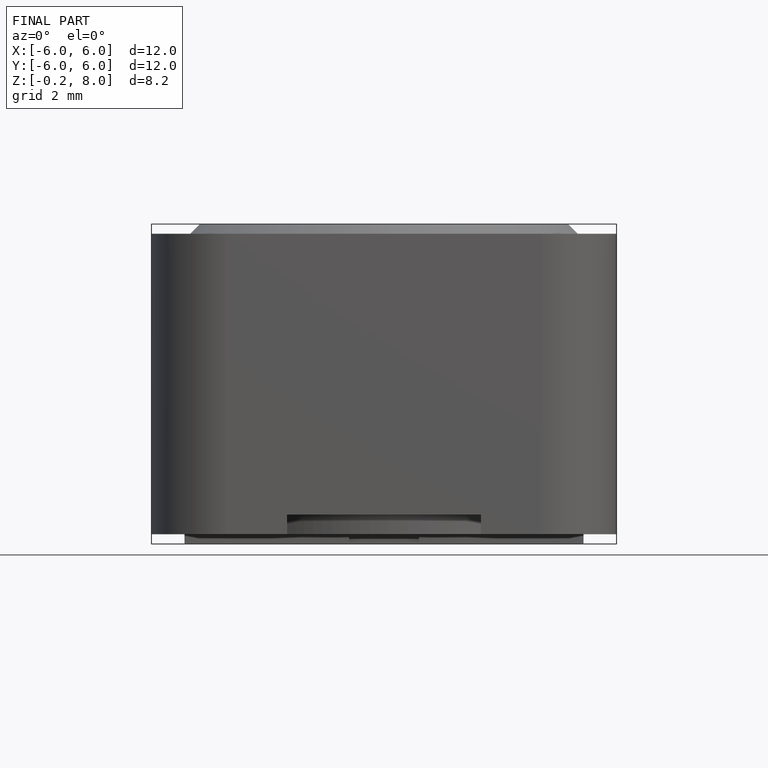
[diagram: finished part — front view with bounding-box wireframe]
